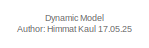
[diagram: root canvas - part 1/4, top left region]
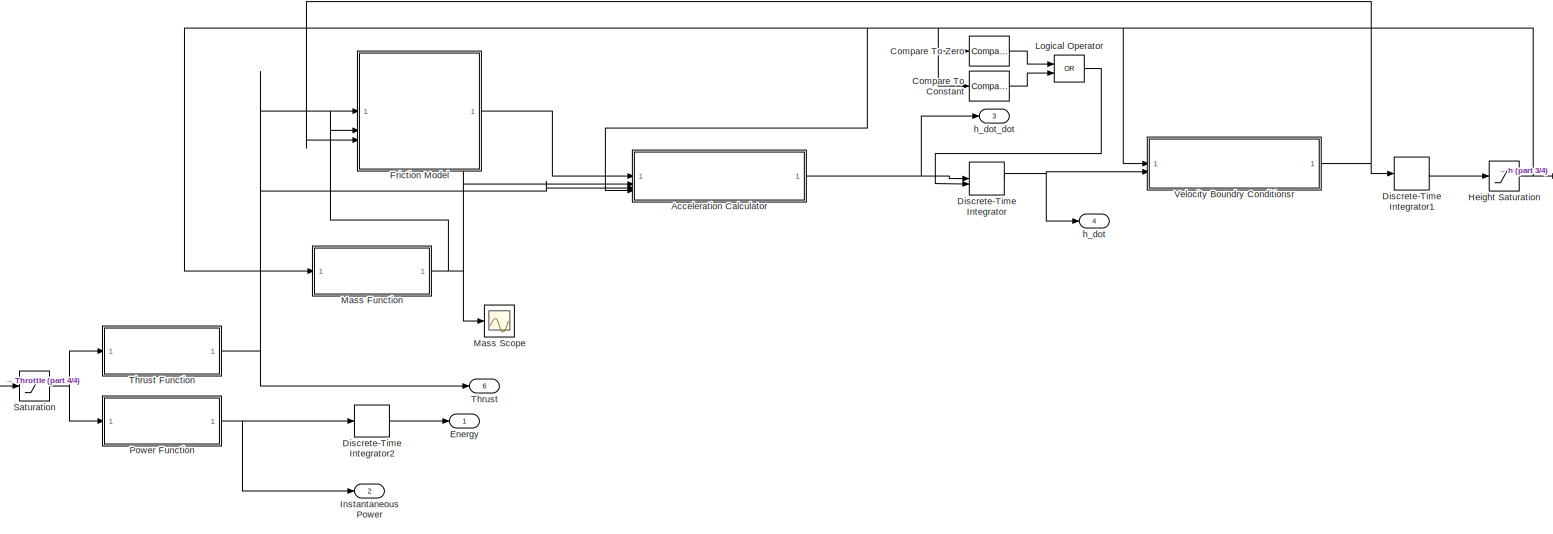
[diagram: root canvas - part 2/4, most of the canvas]
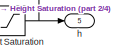
[diagram: root canvas - part 3/4, middle right region]
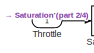
[diagram: root canvas - part 4/4, bottom left region]
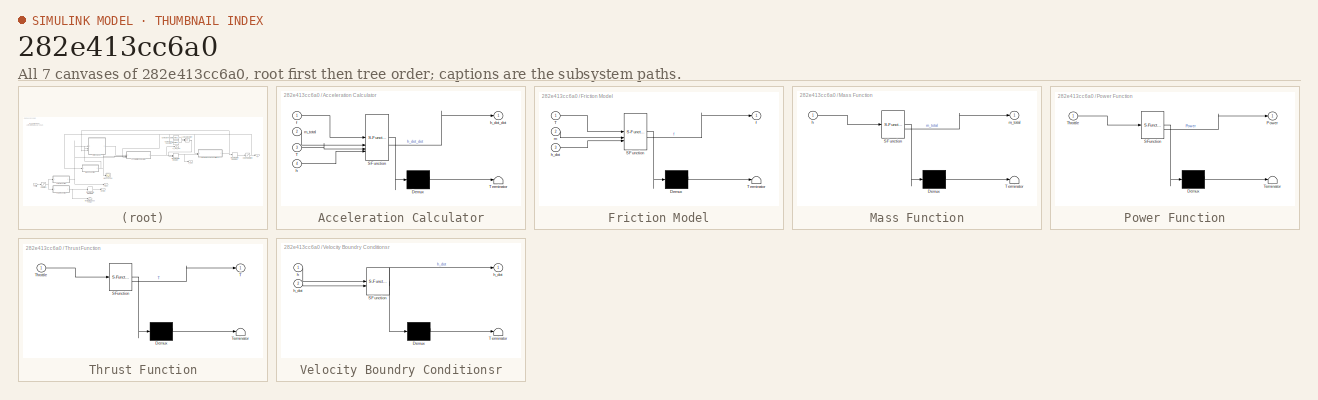
[diagram: thumbnail index - all 7 canvases of the model, root first then tree order]
MODEL slx_282e413cc6a0
KIND model
CONFIG AbsTol = auto
CONFIG EnableMultiTasking = off
CONFIG FixedStep = auto
CONFIG MaxStep = auto
CONFIG MinStep = auto
CONFIG RelTol = 1e-3
CONFIG SampleTimeConstraint = Unconstrained
CONFIG SolverName = VariableStepAuto
CONFIG StartTime = 0.0
CONFIG StopTime = 10.0
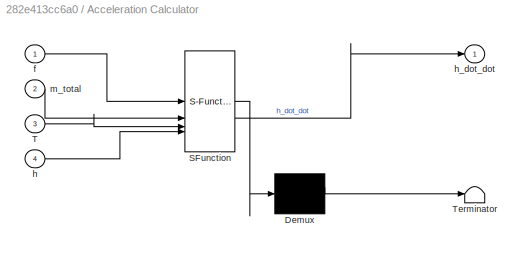
BLOCK [SubSystem] Acceleration Calculator
  ErrorFcn = Stateflow.Translate.translate
  PermitHierarchicalResolution = ExplicitOnly
  SFBlockType = MATLAB Function
  TreatAsAtomicUnit = on
BLOCK [Demux] Acceleration Calculator/ Demux 
  Outputs = 1
BLOCK [S-Function] Acceleration Calculator/ SFunction 
  EnableBusSupport = on
  FunctionName = sf_sfun
  PortCounts = [4 2]
  SFcnIsStateOwnerBlock = off
  SFunctionDeploymentMode = off
  Tag = Stateflow S-Function 5
BLOCK [Terminator] Acceleration Calculator/ Terminator 
BLOCK [Inport] Acceleration Calculator/T
  Port = 3
BLOCK [Inport] Acceleration Calculator/f
BLOCK [Inport] Acceleration Calculator/h
  Port = 4
BLOCK [Outport] Acceleration Calculator/h_dot_dot
BLOCK [Inport] Acceleration Calculator/m_total
  Port = 2
BLOCK [Reference] Compare To Constant  REF=simulink/Logic and Bit
Operations/Compare
To Constant
  SourceBlock = simulink/Logic and Bit\nOperations/Compare\nTo Constant
  SourceType = Compare To Constant
BLOCK [Reference] Compare To Zero  REF=simulink/Logic and Bit
Operations/Compare
To Zero
  SourceBlock = simulink/Logic and Bit\nOperations/Compare\nTo Zero
  SourceType = Compare To Zero
BLOCK [DiscreteIntegrator] Discrete-Time Integrator
  ExternalReset = rising
  ICPrevOutput = DiscIntNeverNeededParam
  ICPrevScaledInput = DiscIntNeverNeededParam
  InitialConditionSetting = Auto
  SampleTime = -1
BLOCK [DiscreteIntegrator] Discrete-Time Integrator1
  ExternalReset = rising
  ICPrevOutput = DiscIntNeverNeededParam
  ICPrevScaledInput = DiscIntNeverNeededParam
  InitialConditionSetting = Auto
  SampleTime = -1
BLOCK [DiscreteIntegrator] Discrete-Time Integrator2
  ICPrevOutput = DiscIntNeverNeededParam
  ICPrevScaledInput = DiscIntNeverNeededParam
  InitialConditionSetting = Auto
  SampleTime = -1
BLOCK [Outport] Energy
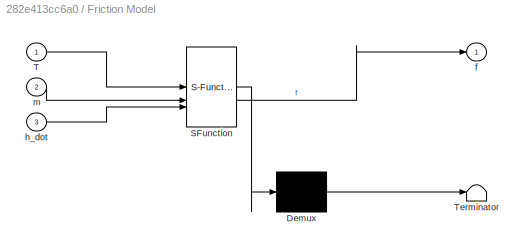
BLOCK [SubSystem] Friction Model
  ErrorFcn = Stateflow.Translate.translate
  PermitHierarchicalResolution = ExplicitOnly
  SFBlockType = MATLAB Function
  TreatAsAtomicUnit = on
BLOCK [Demux] Friction Model/ Demux 
  Outputs = 1
BLOCK [S-Function] Friction Model/ SFunction 
  EnableBusSupport = on
  FunctionName = sf_sfun
  PortCounts = [3 2]
  SFcnIsStateOwnerBlock = off
  SFunctionDeploymentMode = off
  Tag = Stateflow S-Function 3
BLOCK [Terminator] Friction Model/ Terminator 
BLOCK [Inport] Friction Model/T
BLOCK [Outport] Friction Model/f
BLOCK [Inport] Friction Model/h_dot
  Port = 3
BLOCK [Inport] Friction Model/m
  Port = 2
BLOCK [Saturate] Height Saturation
  LowerLimit = 0
  UpperLimit = 1.44
BLOCK [Outport] Instantaneous Power
  Port = 2
BLOCK [Logic] Logical Operator
  AllPortsSameDT = off
  Operator = OR
  OutDataTypeStr = boolean
BLOCK [SubSystem] Mass Function
  ErrorFcn = Stateflow.Translate.translate
  PermitHierarchicalResolution = ExplicitOnly
  SFBlockType = MATLAB Function
  TreatAsAtomicUnit = on
BLOCK [Demux] Mass Function/ Demux 
  Outputs = 1
BLOCK [S-Function] Mass Function/ SFunction 
  EnableBusSupport = on
  FunctionName = sf_sfun
  PortCounts = [1 2]
  SFcnIsStateOwnerBlock = off
  SFunctionDeploymentMode = off
  Tag = Stateflow S-Function 7
BLOCK [Terminator] Mass Function/ Terminator 
BLOCK [Inport] Mass Function/h
BLOCK [Outport] Mass Function/m_total
BLOCK [Scope] Mass Scope
  Floating = off
  NumInputPorts = 1
  ScopeSpecificationString = Simulink.scopes.TimeScopeBlockCfg('CurrentConfiguration', extmgr.ConfigurationSet(extmgr.Configuration('Core','General UI',true),extmgr.Configuration('Core','Source UI',true),extmgr.Configuration('Sources','WiredSimulink',true,'DataLoggingSaveFormat','Array','DataLoggingLimitDataPoints',true,'DataLoggingDecimation','1'),extmgr.Configuration('Visuals','Time Domain',true,'SerializedDisplays',{struct...<+1725ch>
BLOCK [SubSystem] Power Function
  ErrorFcn = Stateflow.Translate.translate
  PermitHierarchicalResolution = ExplicitOnly
  SFBlockType = MATLAB Function
  TreatAsAtomicUnit = on
BLOCK [Demux] Power Function/ Demux 
  Outputs = 1
BLOCK [S-Function] Power Function/ SFunction 
  EnableBusSupport = on
  FunctionName = sf_sfun
  PortCounts = [1 2]
  SFcnIsStateOwnerBlock = off
  SFunctionDeploymentMode = off
  Tag = Stateflow S-Function 2
BLOCK [Terminator] Power Function/ Terminator 
BLOCK [Outport] Power Function/Power
BLOCK [Inport] Power Function/Throttle
BLOCK [Saturate] Saturation
  LowerLimit = 0
  UpperLimit = 0.6
BLOCK [Inport] Throttle
BLOCK [Outport] Thrust
  Port = 6
BLOCK [SubSystem] Thrust Function
  ErrorFcn = Stateflow.Translate.translate
  PermitHierarchicalResolution = ExplicitOnly
  SFBlockType = MATLAB Function
  TreatAsAtomicUnit = on
BLOCK [Demux] Thrust Function/ Demux 
  Outputs = 1
BLOCK [S-Function] Thrust Function/ SFunction 
  EnableBusSupport = on
  FunctionName = sf_sfun
  PortCounts = [1 2]
  SFcnIsStateOwnerBlock = off
  SFunctionDeploymentMode = off
  Tag = Stateflow S-Function 1
BLOCK [Terminator] Thrust Function/ Terminator 
BLOCK [Outport] Thrust Function/T
BLOCK [Inport] Thrust Function/Throttle
BLOCK [SubSystem] Velocity Boundry Conditionsr
  ErrorFcn = Stateflow.Translate.translate
  PermitHierarchicalResolution = ExplicitOnly
  SFBlockType = MATLAB Function
  TreatAsAtomicUnit = on
BLOCK [Demux] Velocity Boundry Conditionsr/ Demux 
  Outputs = 1
BLOCK [S-Function] Velocity Boundry Conditionsr/ SFunction 
  EnableBusSupport = on
  FunctionName = sf_sfun
  PortCounts = [2 2]
  SFcnIsStateOwnerBlock = off
  SFunctionDeploymentMode = off
  Tag = Stateflow S-Function 4
BLOCK [Terminator] Velocity Boundry Conditionsr/ Terminator 
BLOCK [Inport] Velocity Boundry Conditionsr/h
BLOCK [Outport] Velocity Boundry Conditionsr/h_dot
BLOCK [Inport] Velocity Boundry Conditionsr/h_dot 
  Port = 2
BLOCK [Outport] h
  Port = 5
BLOCK [Outport] h_dot
  Port = 4
BLOCK [Outport] h_dot_dot
  Port = 3
ANNOTATION (root): Dynamic Model Author: Himmat Kaul 17.05.25
NET Acceleration Calculator:1 -> Discrete-Time Integrator:1, h_dot_dot:1
LINE Compare To Constant:1 -> Logical Operator:2
LINE Compare To Zero:1 -> Logical Operator:1
LINE Discrete-Time Integrator1:1 -> Height Saturation:1
LINE Discrete-Time Integrator2:1 -> Energy:1
NET Discrete-Time Integrator:1 -> Velocity Boundry Conditionsr:2, h_dot:1
LINE Friction Model:1 -> Acceleration Calculator:1
NET Height Saturation:1 -> Acceleration Calculator:4, Compare To Constant:1, Compare To Zero:1, Mass Function:1, Velocity Boundry Conditionsr:1, h:1
LINE Logical Operator:1 -> Discrete-Time Integrator:2
NET Mass Function:1 -> Acceleration Calculator:2, Friction Model:2, Mass Scope:1
NET Power Function:1 -> Discrete-Time Integrator2:1, Instantaneous Power:1
NET Saturation:1 -> Power Function:1, Thrust Function:1
LINE Throttle:1 -> Saturation:1
NET Thrust Function:1 -> Acceleration Calculator:3, Friction Model:1, Thrust:1
NET Velocity Boundry Conditionsr:1 -> Discrete-Time Integrator1:1, Friction Model:3
note: NET lines group one-source signal fan-out (src -> all destinations, sorted); 1:1 wires keep LINE
CHART Thrust Function states=1 transitions=1
  STATE_LABEL 'eML_blk_kernel()'
  STATE_LABEL 'SCRIPT:\nfunction T = ThrustFunt(Throttle)\n\n% \n% a =    2.186e+05;  \n% b =     -0.08123;  \n% c =   -2.186e+05;  \n% d =      -0.0813;\n% \n% T = 2 * (a*exp(b*Throttle) + c*exp(d*Throttle));\n\nT = 2 * 15 * Throttle;\n\n\n\n'
CHART Power Function states=1 transitions=1
  STATE_LABEL 'eML_blk_kernel()'
  STATE_LABEL 'SCRIPT:\nfunction Power = PowFun(Throttle)\n\na =   3.418e+06;  \nb =       0.179;  \nc =  -3.418e+06;  \nd =      0.1789;\n\nPower = 2 * (a*exp(b*Throttle) + c*exp(d*Throttle));\n\n\n\n\n'
CHART Friction Model states=1 transitions=1
  STATE_LABEL 'eML_blk_kernel()'
  STATE_LABEL 'SCRIPT:\nfunction f = FrictionFun(T, m, h_dot)\n\n% Physical parameters\ng = 9.81;\n% f_static = 0.0013*g; %% given..\nmu_d = 0.17; %% 0.17 upper bound\n\n% Geometry Parameters\nl_t = 0.01;\nl_cg = 0.01;\nL_c = 0.01;\n\n%Piecewise friction function\n\nif h_dot == 0 %% make range\n\n    f = 0.26 * g;\n\n    % if (abs(T-m*g) > 2*f_static)      \n    %     f = T - m*g;\n    % else\n    %     f = 2*f_static;\n    % end\nelse...<+128ch>'
CHART Velocity Boundry Conditionsr states=1 transitions=1
  STATE_LABEL 'eML_blk_kernel()'
  STATE_LABEL 'SCRIPT:\nfunction h_dot = VelocityFun(h, h_dot)\n\n\n% if (h == 0) && (h < 0) \n%     h_dot = 0;\n% elseif (h == 1.44) && (h > 0) \n%     h_dot = 0;\n% else\n    h_dot = h_dot;\n% end'
CHART Acceleration Calculator states=1 transitions=1
  STATE_LABEL 'eML_blk_kernel()'
  STATE_LABEL 'SCRIPT:\nfunction h_dot_dot = AccelerationFun(f, m_total, T, h)\n\ng = 9.81;\n\nm_intertial = m_total + 0.328 + 0.8;\n\nh_dot_dot = (T - f - m_total * g) / m_intertial ;\n \nif (h_dot_dot < 0) && (h == 0)\n    h_dot_dot = 0;\nend\n\nif (h_dot_dot > 0) && (h == 1.44)\n    h_dot_dot = 0;\nend'
CHART Mass Function states=1 transitions=1
  STATE_LABEL 'eML_blk_kernel()'
  STATE_LABEL 'SCRIPT:\nfunction m_total = MassFun(h)\n \nm_copter = 0.05; % kg\nm_electronics = 1.51*2/9.81; % kg \nm_cart = 0.15; %kg\nm_cable = 2 * (0.095 * h + 0.0532); % kg\n\n% if case for caternary stufff....\n\n\n\n\nm_total = m_cart + m_copter + m_electronics + m_cable;\n\n% m_total =;\n'
CHART  states=0 transitions=0
CHART  states=0 transitions=0
CHART  states=0 transitions=0
CHART  states=0 transitions=0
CHART  states=0 transitions=0
CHART  states=0 transitions=0
